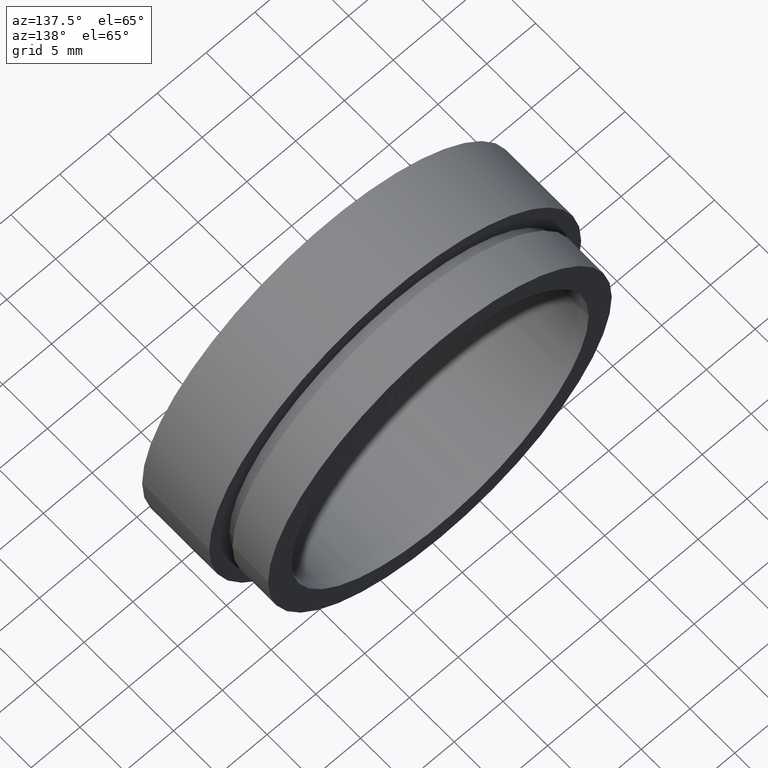
[diagram: clean part render]
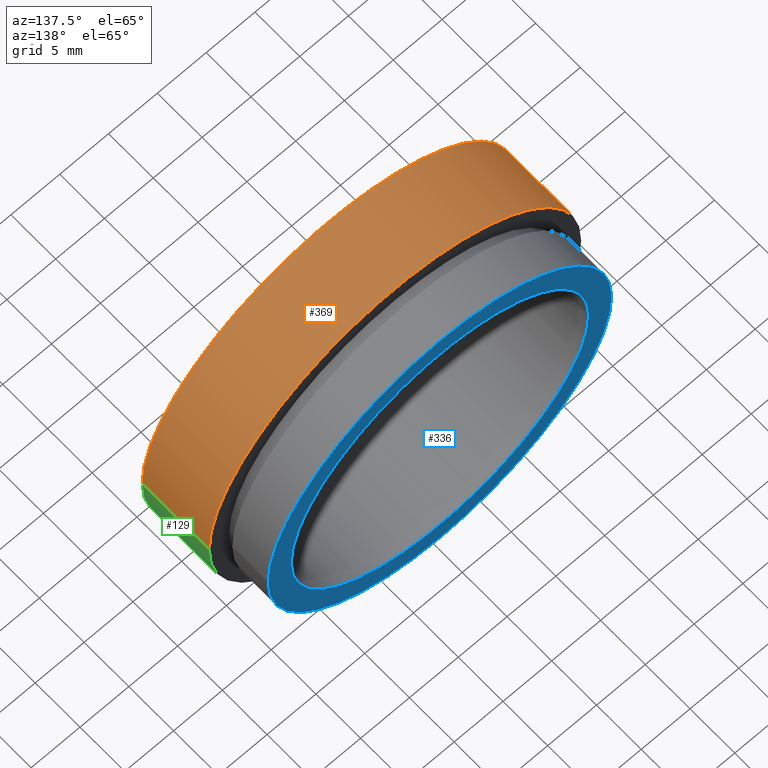
[diagram: same view with three faces highlighted in distinct colors, each labeled with its STEP entity id]
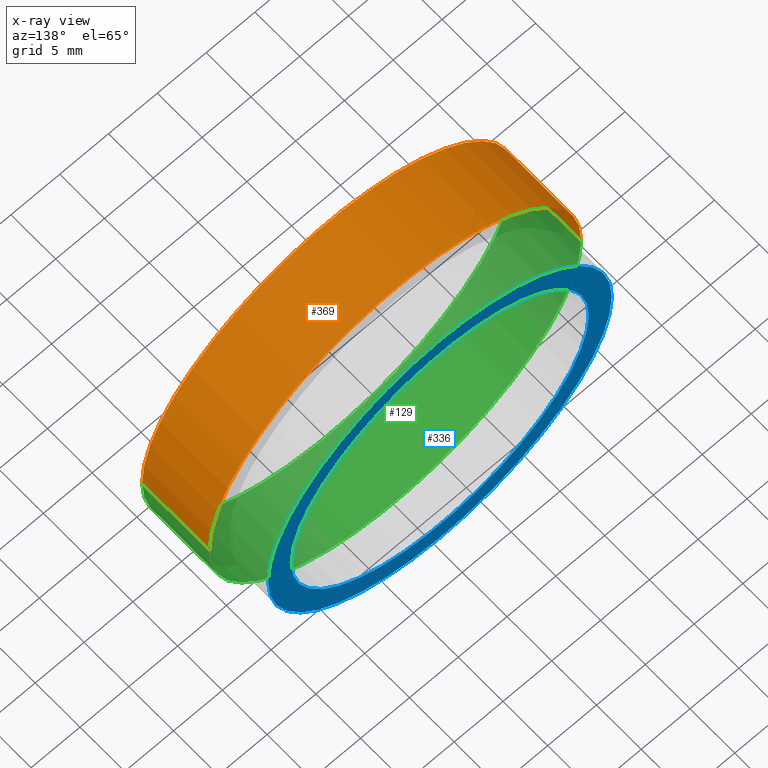
[diagram: x-ray of the same camera — body ghosted, the three highlighted faces saturated]
A machine part, auxiliary view with three faces highlighted in distinct colors.
The next image is the same camera in x-ray (body ghosted, the three faces saturated) — at least one of them is partly hidden behind the body in this view.
Their STEP definitions:

[orange] entity #369 — the highlighted cylindrical surface (partial cylindrical patch) has radius 19.05 mm, axis along (-0, 1, -0).
#9 = EDGE_CURVE ( 'NONE', #58, #187, #154, .T. ) ;
#14 = CARTESIAN_POINT ( 'NONE',  ( 19.05000000000000400, 16.88601823708208000, 2.332952152375708400E-015 ) ) ;
#45 = CARTESIAN_POINT ( 'NONE',  ( -19.05000000000000400, 16.88601823708207300, 0.0000000000000000000 ) ) ;
#46 = CARTESIAN_POINT ( 'NONE',  ( -19.05000000000000400, 7.499999999999993800, 0.0000000000000000000 ) ) ;
#47 = CARTESIAN_POINT ( 'NONE',  ( -19.04999999999999700, -5.802399104329318300E-015, 0.0000000000000000000 ) ) ;
#58 = VERTEX_POINT ( 'NONE', #46 ) ;
#64 = CARTESIAN_POINT ( 'NONE',  ( 2.067940818438636500E-015, -3.469446951953614200E-015, 0.0000000000000000000 ) ) ;
#65 = ORIENTED_EDGE ( 'NONE', *, *, #167, .T. ) ;
#83 = VERTEX_POINT ( 'NONE', #251 ) ;
#114 = DIRECTION ( 'NONE',  ( -1.224646799147351000E-016, 1.000000000000000000, -0.0000000000000000000 ) ) ;
#120 = VECTOR ( 'NONE', #114, 1000.000000000000000 ) ;
#127 = VERTEX_POINT ( 'NONE', #47 ) ;
#139 = DIRECTION ( 'NONE',  ( -1.224646799147351000E-016, 1.000000000000000000, -0.0000000000000000000 ) ) ;
#144 = VECTOR ( 'NONE', #254, 1000.000000000000000 ) ;
#152 = LINE ( 'NONE', #45, #120 ) ;
#154 = CIRCLE ( 'NONE', #186, 19.05000000000000400 ) ;
#158 = CARTESIAN_POINT ( 'NONE',  ( 0.0000000000000000000, 16.88601823708207700, 0.0000000000000000000 ) ) ;
#167 = EDGE_CURVE ( 'NONE', #83, #187, #229, .T. ) ;
#177 = FACE_OUTER_BOUND ( 'NONE', #238, .T. ) ;
#178 = EDGE_CURVE ( 'NONE', #127, #58, #152, .T. ) ;
#186 = AXIS2_PLACEMENT_3D ( 'NONE', #342, #139, #410 ) ;
#187 = VERTEX_POINT ( 'NONE', #188 ) ;
#188 = CARTESIAN_POINT ( 'NONE',  ( 19.05000000000000400, 7.499999999999999100, 2.332952152375708400E-015 ) ) ;
#191 = AXIS2_PLACEMENT_3D ( 'NONE', #158, #335, #402 ) ;
#202 = DIRECTION ( 'NONE',  ( -1.000000000000000000, -1.224646799147351200E-016, 0.0000000000000000000 ) ) ;
#213 = AXIS2_PLACEMENT_3D ( 'NONE', #64, #265, #202 ) ;
#229 = LINE ( 'NONE', #14, #144 ) ;
#238 = EDGE_LOOP ( 'NONE', ( #345, #65, #317, #334 ) ) ;
#239 = CIRCLE ( 'NONE', #213, 19.05000000000000100 ) ;
#251 = CARTESIAN_POINT ( 'NONE',  ( 19.05000000000000400, -1.136494799577910300E-015, 2.332952152375708400E-015 ) ) ;
#254 = DIRECTION ( 'NONE',  ( -1.224646799147351000E-016, 1.000000000000000000, -0.0000000000000000000 ) ) ;
#265 = DIRECTION ( 'NONE',  ( -1.224646799147351000E-016, 1.000000000000000000, -0.0000000000000000000 ) ) ;
#317 = ORIENTED_EDGE ( 'NONE', *, *, #9, .F. ) ;
#334 = ORIENTED_EDGE ( 'NONE', *, *, #178, .F. ) ;
#335 = DIRECTION ( 'NONE',  ( -1.224646799147351000E-016, 1.000000000000000000, -0.0000000000000000000 ) ) ;
#342 = CARTESIAN_POINT ( 'NONE',  ( 1.149455719078123100E-015, 7.499999999999996400, 0.0000000000000000000 ) ) ;
#345 = ORIENTED_EDGE ( 'NONE', *, *, #423, .T. ) ;
#369 = ADVANCED_FACE ( 'NONE', ( #177 ), #379, .T. ) ;
#379 = CYLINDRICAL_SURFACE ( 'NONE', #191, 19.05000000000000400 ) ;
#402 = DIRECTION ( 'NONE',  ( -1.000000000000000000, -1.821231995776175000E-016, 0.0000000000000000000 ) ) ;
#410 = DIRECTION ( 'NONE',  ( -1.000000000000000000, -1.365923996832131400E-016, 0.0000000000000000000 ) ) ;
#423 = EDGE_CURVE ( 'NONE', #127, #83, #239, .T. ) ;

[blue] entity #336 — the highlighted planar face has unit normal (0, -1, 0).
#23 = AXIS2_PLACEMENT_3D ( 'NONE', #323, #183, #353 ) ;
#25 = CARTESIAN_POINT ( 'NONE',  ( 5.371323195044472300E-016, 12.49999999999999800, 0.0000000000000000000 ) ) ;
#54 = AXIS2_PLACEMENT_3D ( 'NONE', #153, #289, #287 ) ;
#57 = ORIENTED_EDGE ( 'NONE', *, *, #290, .T. ) ;
#84 = CARTESIAN_POINT ( 'NONE',  ( 15.24000000000000400, 12.50000000000000000, 1.866361721900566600E-015 ) ) ;
#89 = DIRECTION ( 'NONE',  ( 1.224646799147351000E-016, -1.000000000000000000, 0.0000000000000000000 ) ) ;
#97 = EDGE_CURVE ( 'NONE', #237, #267, #264, .T. ) ;
#106 = FACE_OUTER_BOUND ( 'NONE', #113, .T. ) ;
#113 = EDGE_LOOP ( 'NONE', ( #209, #57 ) ) ;
#122 = AXIS2_PLACEMENT_3D ( 'NONE', #25, #427, #192 ) ;
#130 = CIRCLE ( 'NONE', #54, 15.24000000000000200 ) ;
#151 = CARTESIAN_POINT ( 'NONE',  ( -17.60000000000000100, 12.49999999999999500, 0.0000000000000000000 ) ) ;
#153 = CARTESIAN_POINT ( 'NONE',  ( 5.371323195044472300E-016, 12.49999999999999800, 0.0000000000000000000 ) ) ;
#163 = CARTESIAN_POINT ( 'NONE',  ( 17.60000000000000100, 12.49999999999999800, 2.155378366499341600E-015 ) ) ;
#173 = EDGE_CURVE ( 'NONE', #175, #384, #130, .T. ) ;
#175 = VERTEX_POINT ( 'NONE', #84 ) ;
#179 = ORIENTED_EDGE ( 'NONE', *, *, #173, .F. ) ;
#183 = DIRECTION ( 'NONE',  ( -1.224646799147351000E-016, 1.000000000000000000, -0.0000000000000000000 ) ) ;
#192 = DIRECTION ( 'NONE',  ( -1.000000000000000000, -1.138269997360109400E-016, 0.0000000000000000000 ) ) ;
#194 = DIRECTION ( 'NONE',  ( 1.000000000000000000, 1.224646799147351000E-016, 0.0000000000000000000 ) ) ;
#207 = ORIENTED_EDGE ( 'NONE', *, *, #270, .F. ) ;
#209 = ORIENTED_EDGE ( 'NONE', *, *, #97, .T. ) ;
#226 = CARTESIAN_POINT ( 'NONE',  ( 5.371323195044474300E-016, 12.49999999999999600, 0.0000000000000000000 ) ) ;
#237 = VERTEX_POINT ( 'NONE', #151 ) ;
#260 = DIRECTION ( 'NONE',  ( -1.000000000000000000, -9.856383386231857600E-017, 0.0000000000000000000 ) ) ;
#264 = CIRCLE ( 'NONE', #23, 17.60000000000000100 ) ;
#267 = VERTEX_POINT ( 'NONE', #163 ) ;
#268 = FACE_BOUND ( 'NONE', #279, .T. ) ;
#270 = EDGE_CURVE ( 'NONE', #384, #175, #411, .T. ) ;
#279 = EDGE_LOOP ( 'NONE', ( #207, #179 ) ) ;
#287 = DIRECTION ( 'NONE',  ( -1.000000000000000000, -1.138269997360109400E-016, 0.0000000000000000000 ) ) ;
#289 = DIRECTION ( 'NONE',  ( -1.224646799147351000E-016, 1.000000000000000000, -0.0000000000000000000 ) ) ;
#290 = EDGE_CURVE ( 'NONE', #267, #237, #306, .T. ) ;
#306 = CIRCLE ( 'NONE', #407, 17.60000000000000100 ) ;
#323 = CARTESIAN_POINT ( 'NONE',  ( 5.371323195044474300E-016, 12.49999999999999600, 0.0000000000000000000 ) ) ;
#336 = ADVANCED_FACE ( 'NONE', ( #268, #106 ), #399, .F. ) ;
#353 = DIRECTION ( 'NONE',  ( -1.000000000000000000, -9.856383386231857600E-017, 0.0000000000000000000 ) ) ;
#358 = AXIS2_PLACEMENT_3D ( 'NONE', #392, #89, #194 ) ;
#363 = DIRECTION ( 'NONE',  ( -1.224646799147351000E-016, 1.000000000000000000, -0.0000000000000000000 ) ) ;
#384 = VERTEX_POINT ( 'NONE', #396 ) ;
#392 = CARTESIAN_POINT ( 'NONE',  ( 15.24000000000000200, 12.50000000000000000, 0.0000000000000000000 ) ) ;
#396 = CARTESIAN_POINT ( 'NONE',  ( -15.24000000000000200, 12.49999999999999600, 0.0000000000000000000 ) ) ;
#399 = PLANE ( 'NONE',  #358 ) ;
#407 = AXIS2_PLACEMENT_3D ( 'NONE', #226, #363, #260 ) ;
#411 = CIRCLE ( 'NONE', #122, 15.24000000000000200 ) ;
#427 = DIRECTION ( 'NONE',  ( -1.224646799147351000E-016, 1.000000000000000000, -0.0000000000000000000 ) ) ;

[green] entity #129 — the highlighted cylindrical surface (partial cylindrical patch) has radius 19.05 mm, axis along (-0, 1, -0).
#14 = CARTESIAN_POINT ( 'NONE',  ( 19.05000000000000400, 16.88601823708208000, 2.332952152375708400E-015 ) ) ;
#41 = EDGE_CURVE ( 'NONE', #187, #58, #149, .T. ) ;
#43 = CARTESIAN_POINT ( 'NONE',  ( 1.149455719078123100E-015, 7.499999999999996400, 0.0000000000000000000 ) ) ;
#44 = ORIENTED_EDGE ( 'NONE', *, *, #41, .F. ) ;
#45 = CARTESIAN_POINT ( 'NONE',  ( -19.05000000000000400, 16.88601823708207300, 0.0000000000000000000 ) ) ;
#46 = CARTESIAN_POINT ( 'NONE',  ( -19.05000000000000400, 7.499999999999993800, 0.0000000000000000000 ) ) ;
#47 = CARTESIAN_POINT ( 'NONE',  ( -19.04999999999999700, -5.802399104329318300E-015, 0.0000000000000000000 ) ) ;
#48 = EDGE_LOOP ( 'NONE', ( #269, #118, #428, #44 ) ) ;
#58 = VERTEX_POINT ( 'NONE', #46 ) ;
#83 = VERTEX_POINT ( 'NONE', #251 ) ;
#87 = AXIS2_PLACEMENT_3D ( 'NONE', #43, #281, #352 ) ;
#98 = DIRECTION ( 'NONE',  ( -1.000000000000000000, -1.224646799147351200E-016, 0.0000000000000000000 ) ) ;
#109 = AXIS2_PLACEMENT_3D ( 'NONE', #389, #354, #292 ) ;
#114 = DIRECTION ( 'NONE',  ( -1.224646799147351000E-016, 1.000000000000000000, -0.0000000000000000000 ) ) ;
#116 = CYLINDRICAL_SURFACE ( 'NONE', #109, 19.05000000000000400 ) ;
#118 = ORIENTED_EDGE ( 'NONE', *, *, #412, .T. ) ;
#120 = VECTOR ( 'NONE', #114, 1000.000000000000000 ) ;
#127 = VERTEX_POINT ( 'NONE', #47 ) ;
#129 = ADVANCED_FACE ( 'NONE', ( #174 ), #116, .T. ) ;
#144 = VECTOR ( 'NONE', #254, 1000.000000000000000 ) ;
#149 = CIRCLE ( 'NONE', #87, 19.05000000000000400 ) ;
#152 = LINE ( 'NONE', #45, #120 ) ;
#167 = EDGE_CURVE ( 'NONE', #83, #187, #229, .T. ) ;
#169 = AXIS2_PLACEMENT_3D ( 'NONE', #300, #303, #98 ) ;
#174 = FACE_OUTER_BOUND ( 'NONE', #48, .T. ) ;
#178 = EDGE_CURVE ( 'NONE', #127, #58, #152, .T. ) ;
#187 = VERTEX_POINT ( 'NONE', #188 ) ;
#188 = CARTESIAN_POINT ( 'NONE',  ( 19.05000000000000400, 7.499999999999999100, 2.332952152375708400E-015 ) ) ;
#229 = LINE ( 'NONE', #14, #144 ) ;
#251 = CARTESIAN_POINT ( 'NONE',  ( 19.05000000000000400, -1.136494799577910300E-015, 2.332952152375708400E-015 ) ) ;
#254 = DIRECTION ( 'NONE',  ( -1.224646799147351000E-016, 1.000000000000000000, -0.0000000000000000000 ) ) ;
#269 = ORIENTED_EDGE ( 'NONE', *, *, #167, .F. ) ;
#281 = DIRECTION ( 'NONE',  ( -1.224646799147351000E-016, 1.000000000000000000, -0.0000000000000000000 ) ) ;
#292 = DIRECTION ( 'NONE',  ( -1.000000000000000000, -1.821231995776175000E-016, 0.0000000000000000000 ) ) ;
#300 = CARTESIAN_POINT ( 'NONE',  ( 2.067940818438636500E-015, -3.469446951953614200E-015, 0.0000000000000000000 ) ) ;
#303 = DIRECTION ( 'NONE',  ( -1.224646799147351000E-016, 1.000000000000000000, -0.0000000000000000000 ) ) ;
#352 = DIRECTION ( 'NONE',  ( -1.000000000000000000, -1.365923996832131400E-016, 0.0000000000000000000 ) ) ;
#354 = DIRECTION ( 'NONE',  ( -1.224646799147351000E-016, 1.000000000000000000, -0.0000000000000000000 ) ) ;
#389 = CARTESIAN_POINT ( 'NONE',  ( 0.0000000000000000000, 16.88601823708207700, 0.0000000000000000000 ) ) ;
#412 = EDGE_CURVE ( 'NONE', #83, #127, #421, .T. ) ;
#421 = CIRCLE ( 'NONE', #169, 19.05000000000000100 ) ;
#428 = ORIENTED_EDGE ( 'NONE', *, *, #178, .T. ) ;